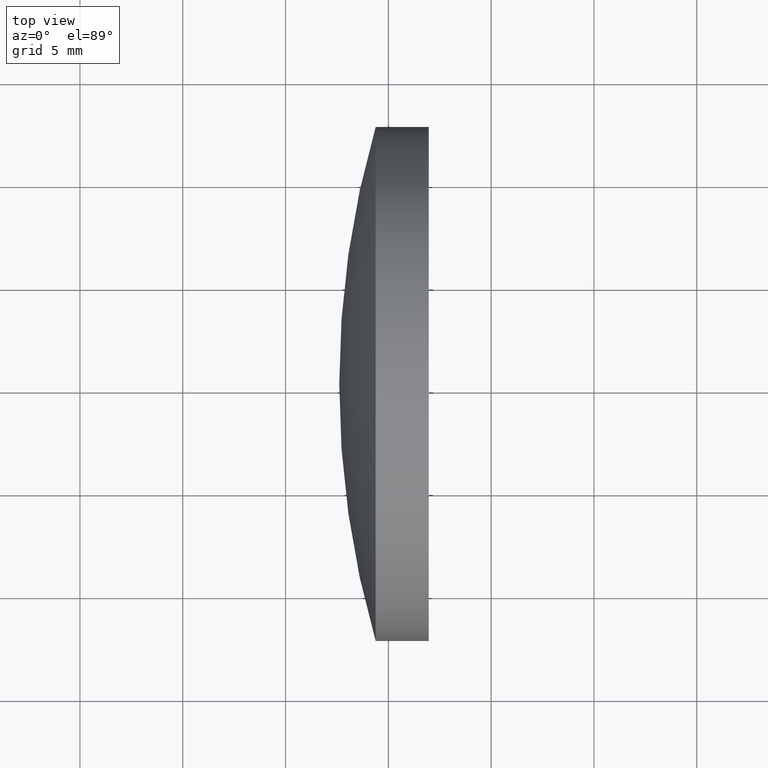
[diagram: clean part render]
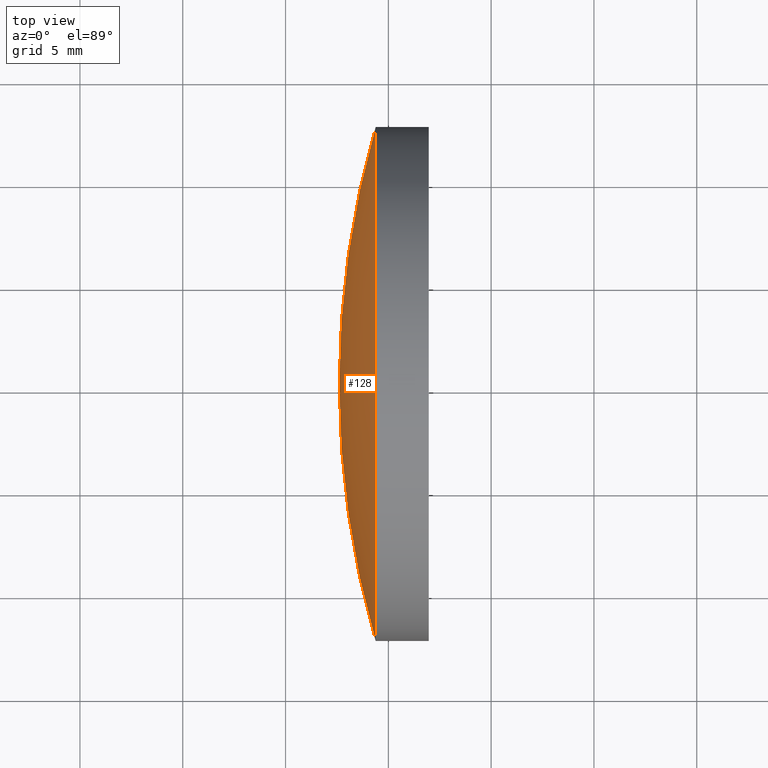
[diagram: same view with one face highlighted and labeled with its STEP entity id]
A machine part, top view. The second image highlights one B-rep face of the part: STEP entity #128.
In plain terms, the highlighted spherical surface has radius 45 mm.
Its self-contained STEP definition (entity closure, byte-faithful):
#1 = CARTESIAN_POINT ( 'NONE',  ( 122.6121936984948200, 65.21684047094031200, 0.0000000000000000000 ) ) ;
#6 = EDGE_CURVE ( 'NONE', #157, #149, #13, .T. ) ;
#13 = CIRCLE ( 'NONE', #19, 12.50000000000001800 ) ;
#19 = AXIS2_PLACEMENT_3D ( 'NONE', #52, #168, #78 ) ;
#21 = EDGE_CURVE ( 'NONE', #157, #139, #26, .T. ) ;
#22 = CARTESIAN_POINT ( 'NONE',  ( 124.3831525340183500, 77.71684047094034000, 0.0000000000000000000 ) ) ;
#25 = DIRECTION ( 'NONE',  ( 0.0000000000000000000, 1.000000000000000000, 1.224646799147353200E-016 ) ) ;
#26 = CIRCLE ( 'NONE', #28, 45.00000000000001400 ) ;
#28 = AXIS2_PLACEMENT_3D ( 'NONE', #42, #60, #25 ) ;
#30 = CARTESIAN_POINT ( 'NONE',  ( 167.6121936984948500, 65.21684047094034000, 0.0000000000000000000 ) ) ;
#34 = CARTESIAN_POINT ( 'NONE',  ( 167.6121936984948500, 65.21684047094034000, 0.0000000000000000000 ) ) ;
#42 = CARTESIAN_POINT ( 'NONE',  ( 167.6121936984948500, 65.21684047094034000, 0.0000000000000000000 ) ) ;
#46 = CIRCLE ( 'NONE', #58, 45.00000000000001400 ) ;
#47 = FACE_OUTER_BOUND ( 'NONE', #169, .T. ) ;
#52 = CARTESIAN_POINT ( 'NONE',  ( 124.3831525340183800, 65.21684047094032600, 0.0000000000000000000 ) ) ;
#58 = AXIS2_PLACEMENT_3D ( 'NONE', #30, #147, #160 ) ;
#60 = DIRECTION ( 'NONE',  ( -8.496118506040342700E-032, 1.224646799147353200E-016, -1.000000000000000000 ) ) ;
#62 = ORIENTED_EDGE ( 'NONE', *, *, #6, .T. ) ;
#73 = CARTESIAN_POINT ( 'NONE',  ( 124.3831525340183800, 52.71684047094031200, -1.530808498934192100E-015 ) ) ;
#74 = SPHERICAL_SURFACE ( 'NONE', #159, 45.00000000000001400 ) ;
#76 = DIRECTION ( 'NONE',  ( -0.0000000000000000000, 0.0000000000000000000, -1.000000000000000000 ) ) ;
#78 = DIRECTION ( 'NONE',  ( 1.110223024625155000E-015, -1.000000000000000000, 0.0000000000000000000 ) ) ;
#128 = ADVANCED_FACE ( 'NONE', ( #47 ), #74, .T. ) ;
#136 = ORIENTED_EDGE ( 'NONE', *, *, #21, .F. ) ;
#138 = DIRECTION ( 'NONE',  ( -6.167905692361979600E-016, 1.000000000000000000, 0.0000000000000000000 ) ) ;
#139 = VERTEX_POINT ( 'NONE', #1 ) ;
#147 = DIRECTION ( 'NONE',  ( -0.0000000000000000000, 0.0000000000000000000, 1.000000000000000000 ) ) ;
#149 = VERTEX_POINT ( 'NONE', #22 ) ;
#153 = ORIENTED_EDGE ( 'NONE', *, *, #166, .T. ) ;
#157 = VERTEX_POINT ( 'NONE', #73 ) ;
#159 = AXIS2_PLACEMENT_3D ( 'NONE', #34, #76, #138 ) ;
#160 = DIRECTION ( 'NONE',  ( 1.000000000000000000, 0.0000000000000000000, 0.0000000000000000000 ) ) ;
#166 = EDGE_CURVE ( 'NONE', #149, #139, #46, .T. ) ;
#168 = DIRECTION ( 'NONE',  ( -1.000000000000000000, -6.937607244762875000E-016, -0.0000000000000000000 ) ) ;
#169 = EDGE_LOOP ( 'NONE', ( #136, #62, #153 ) ) ;